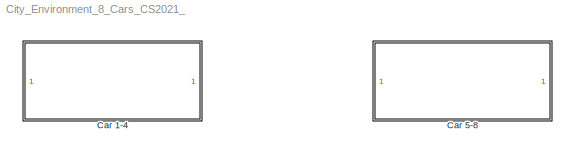
MODEL City_Environment_8_Cars_CS2021_
KIND model
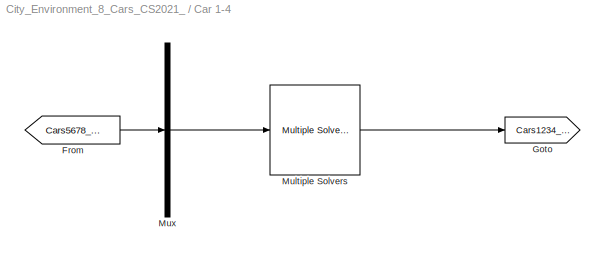
BLOCK [SubSystem] Car 1-4
  FunctionWithSeparateData = off
  MaskHideContents = off
  MinAlgLoopOccurrences = off
  Opaque = off
  Ports = []
  PropExecContextOutsideSubsystem = off
  RTWSystemCode = Auto
  RequestExecContextInheritance = off
  SID = 154
BLOCK [From] Car 1-4/From
  GotoTag = Cars5678_Out
  SID = 155
  TagVisibility = global
BLOCK [Goto] Car 1-4/Goto
  GotoTag = Cars1234_Out
  SID = 158
  TagVisibility = global
BLOCK [Reference] Car 1-4/Multiple Solvers  REF=Solver_SF/Multiple Solvers
  Ports = [1, 1]
  Priority = 1
  Run_RTs = off
  SID = 159
  SIMFILE = <path>
  SourceBlock = Solver_SF/Multiple Solvers
  SourceType = Vehicle math model library
  StopMode_ind = Vehicle Model
  iVehicle = 1
  vs_scx = on
  vs_state_ind = Run
BLOCK [Mux] Car 1-4/Mux
  DisplayOption = bar
  Inputs = 1
  Ports = [1, 1]
  SID = 160
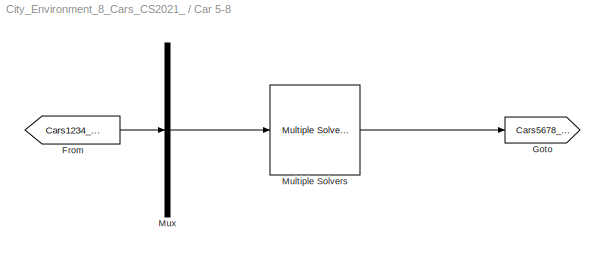
BLOCK [SubSystem] Car 5-8
  FunctionWithSeparateData = off
  MaskHideContents = off
  MinAlgLoopOccurrences = off
  Opaque = off
  Ports = []
  PropExecContextOutsideSubsystem = off
  RTWSystemCode = Auto
  RequestExecContextInheritance = off
  SID = 161
BLOCK [From] Car 5-8/From
  GotoTag = Cars1234_Out
  SID = 162
  TagVisibility = global
BLOCK [Goto] Car 5-8/Goto
  GotoTag = Cars5678_Out
  SID = 163
  TagVisibility = global
BLOCK [Reference] Car 5-8/Multiple Solvers  REF=Solver_SF/Multiple Solvers
  Ports = [1, 1]
  Priority = 1
  Run_RTs = off
  SID = 164
  SIMFILE = <path>
  SourceBlock = Solver_SF/Multiple Solvers
  SourceType = Vehicle math model library
  StopMode_ind = Vehicle Model
  iVehicle = 2
  vs_scx = on
  vs_state_ind = Run
BLOCK [Mux] Car 5-8/Mux
  DisplayOption = bar
  Inputs = 1
  Ports = [1, 1]
  SID = 165
LINE Car 1-4/From:1 -> Car 1-4/Mux:1
LINE Car 1-4/Multiple Solvers:1 -> Car 1-4/Goto:1
LINE Car 1-4/Mux:1 -> Car 1-4/Multiple Solvers:1
LINE Car 5-8/From:1 -> Car 5-8/Mux:1
LINE Car 5-8/Multiple Solvers:1 -> Car 5-8/Goto:1
LINE Car 5-8/Mux:1 -> Car 5-8/Multiple Solvers:1
note: 2 file-system paths scrubbed to <path> (not preserved elsewhere — flat text is the only slx artifact)
